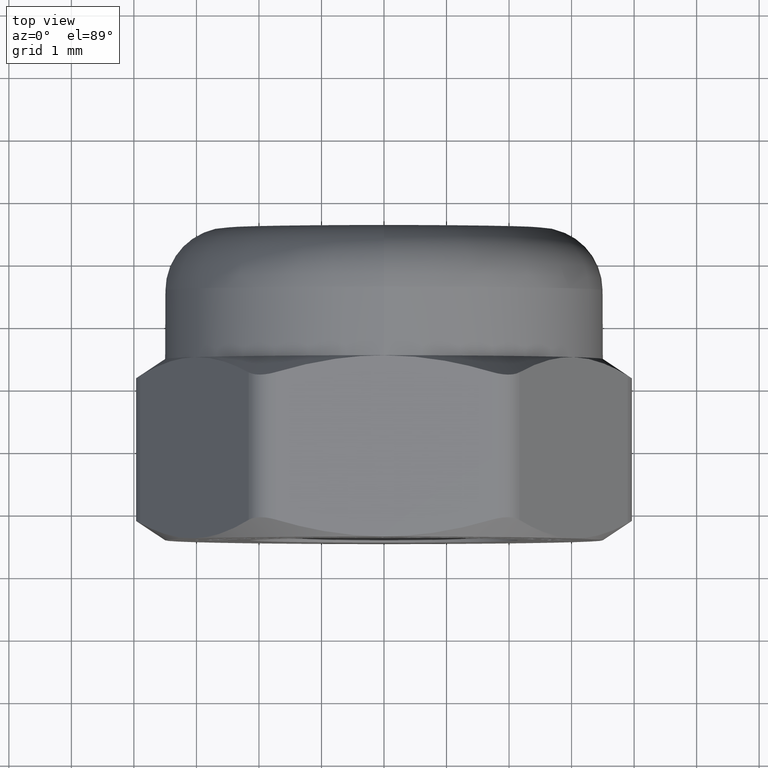
[diagram: clean part render]
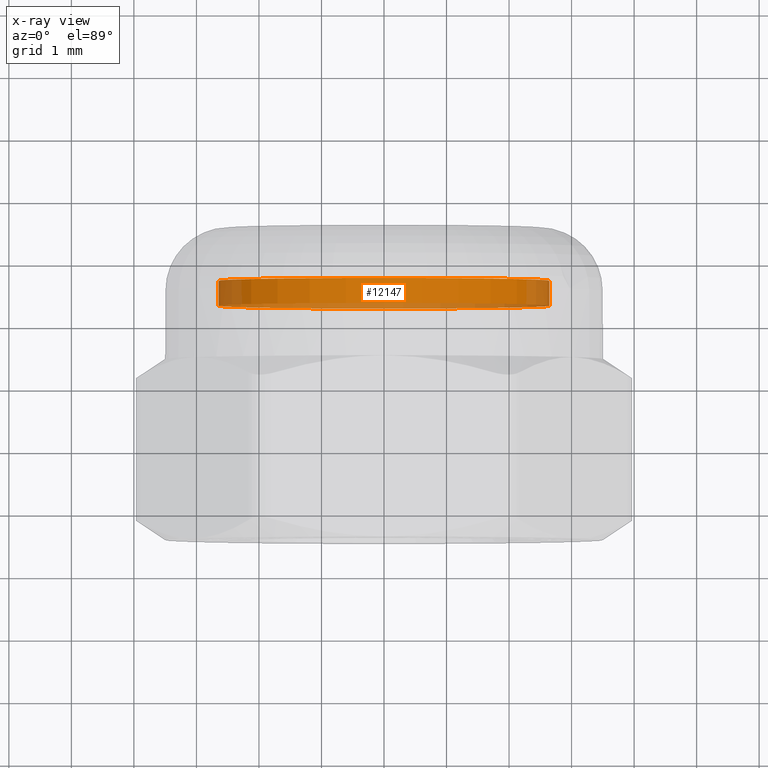
[diagram: x-ray — body ghosted, one internal face saturated and labeled with its STEP entity id]
A machine part, top view, then the same camera in x-ray: the body is ghosted and one INTERNAL B-rep face — a face not visible from any outside direction — is saturated and labeled: STEP entity #12147.
In plain terms, the highlighted cylindrical surface (bore or boss wall) has radius 2.65 mm, axis along (-0, -1, -0).
Its self-contained STEP definition (entity closure, byte-faithful):
#455 = DIRECTION ( 'NONE',  ( 0.000000000000000000, 0.000000000000000000, 1.000000000000000000 ) ) ;
#538 = FACE_OUTER_BOUND ( 'NONE', #2805, .T. ) ;
#1089 = CARTESIAN_POINT ( 'NONE',  ( 0.000000000000000000, 2.699999999999999289, 2.649999999999999467 ) ) ;
#1153 = VERTEX_POINT ( 'NONE', #11928 ) ;
#1282 = DIRECTION ( 'NONE',  ( 0.000000000000000000, 1.000000000000000000, 0.000000000000000000 ) ) ;
#2119 = EDGE_LOOP ( 'NONE', ( #12377 ) ) ;
#2416 = DIRECTION ( 'NONE',  ( -0.000000000000000000, -1.000000000000000000, -0.000000000000000000 ) ) ;
#2805 = EDGE_LOOP ( 'NONE', ( #3178 ) ) ;
#2833 = EDGE_CURVE ( 'NONE', #1153, #1153, #4638, .T. ) ;
#3178 = ORIENTED_EDGE ( 'NONE', *, *, #7006, .F. ) ;
#4173 = AXIS2_PLACEMENT_3D ( 'NONE', #4951, #1282, #12120 ) ;
#4195 = CARTESIAN_POINT ( 'NONE',  ( 0.000000000000000000, 2.699999999999999289, 0.000000000000000000 ) ) ;
#4638 = CIRCLE ( 'NONE', #4173, 2.649999999999999467 ) ;
#4802 = DIRECTION ( 'NONE',  ( 0.000000000000000000, 0.000000000000000000, -1.000000000000000000 ) ) ;
#4951 = CARTESIAN_POINT ( 'NONE',  ( 0.000000000000000000, 2.299999999999999822, 0.000000000000000000 ) ) ;
#7006 = EDGE_CURVE ( 'NONE', #13873, #13873, #14865, .T. ) ;
#7226 = AXIS2_PLACEMENT_3D ( 'NONE', #4195, #14969, #455 ) ;
#9708 = CARTESIAN_POINT ( 'NONE',  ( 0.000000000000000000, 10.24533188057740318, 0.000000000000000000 ) ) ;
#11329 = AXIS2_PLACEMENT_3D ( 'NONE', #9708, #2416, #4802 ) ;
#11928 = CARTESIAN_POINT ( 'NONE',  ( 0.000000000000000000, 2.299999999999999822, 2.649999999999999467 ) ) ;
#12120 = DIRECTION ( 'NONE',  ( 0.000000000000000000, 0.000000000000000000, 1.000000000000000000 ) ) ;
#12147 = ADVANCED_FACE ( 'NONE', ( #13266, #538 ), #12502, .T. ) ;
#12377 = ORIENTED_EDGE ( 'NONE', *, *, #2833, .T. ) ;
#12502 = CYLINDRICAL_SURFACE ( 'NONE', #11329, 2.649999999999999467 ) ;
#13266 = FACE_OUTER_BOUND ( 'NONE', #2119, .T. ) ;
#13873 = VERTEX_POINT ( 'NONE', #1089 ) ;
#14865 = CIRCLE ( 'NONE', #7226, 2.649999999999999467 ) ;
#14969 = DIRECTION ( 'NONE',  ( 0.000000000000000000, 1.000000000000000000, 0.000000000000000000 ) ) ;